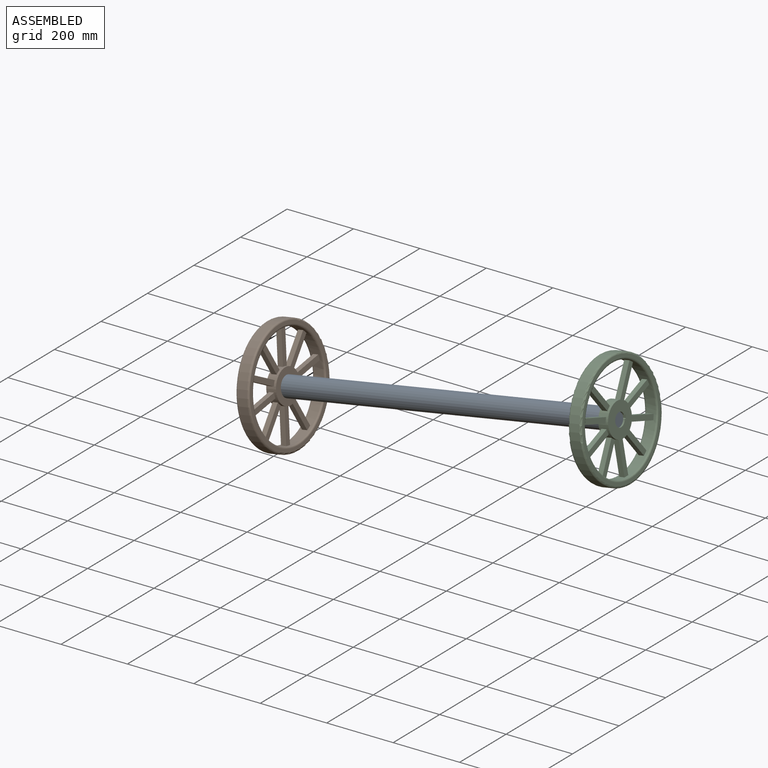
[diagram: assembled view]
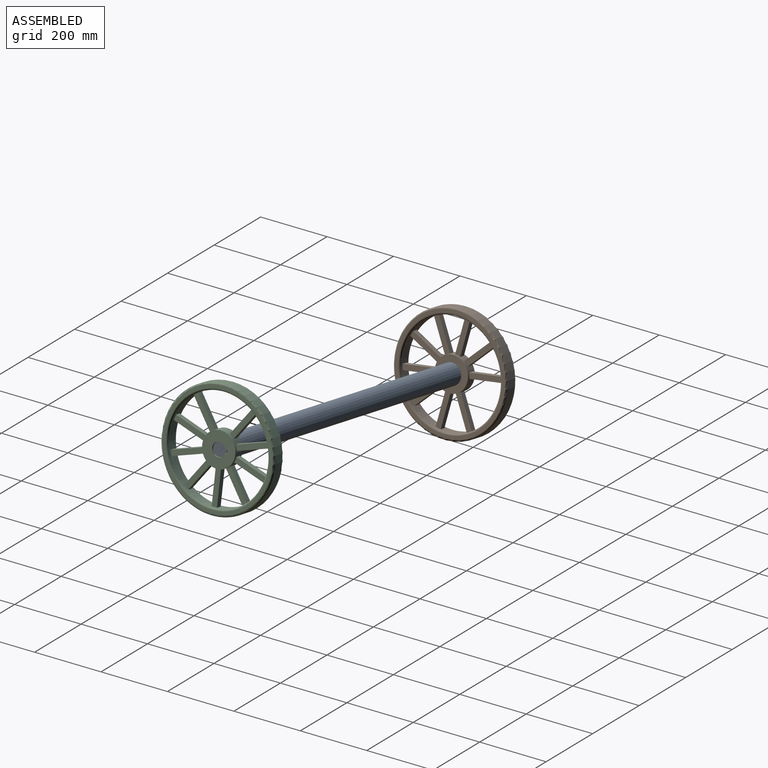
[diagram: assembled view, second angle]
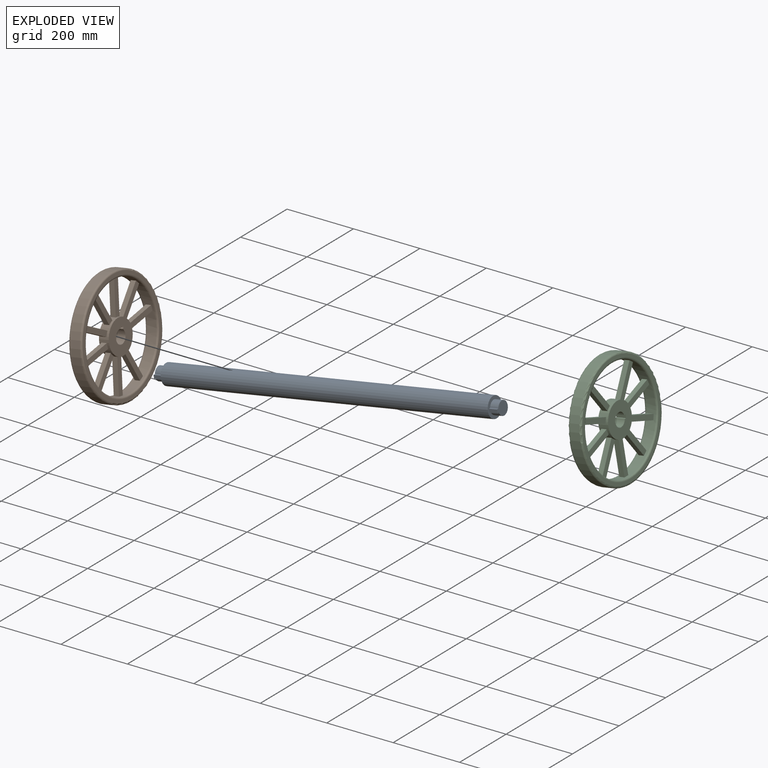
[diagram: exploded view]
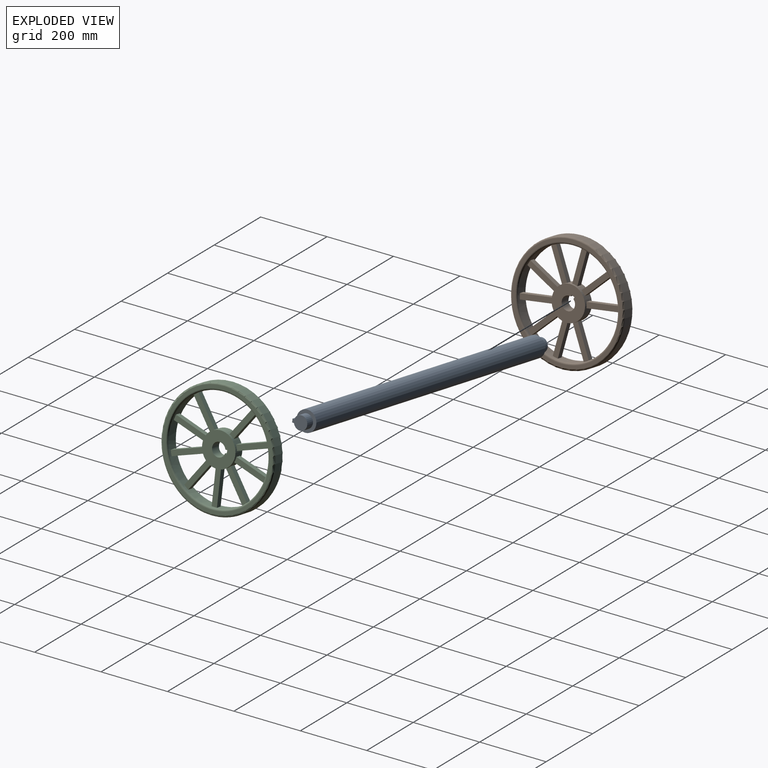
[diagram: exploded view, second angle]
ASSEMBLY  parts=3 mates=4
PART A: 13 faces, bbox 60x60x1050 mm
  f0: plane 60x60mm, normal (0,0,-1), area 1518.7mm2, adj f2,f8,f9,f10,f11
  f1: plane 60x60mm, normal (0,0,1), area 1518.7mm2, adj f2,f3,f4,f5,f6
  f2: cylinder r=30mm len=1000mm, axis (0,0,-1), area 188495.6mm2, adj f0,f1
  f3: plane 25x10mm, normal (0,1,0), area 250mm2, adj f1,f4,f6,f7
  f4: plane 25x5.64mm, normal (-1,0,0), area 140.9mm2, adj f1,f3,f5,f7
  f5: cylinder r=20mm len=40mm, axis (0,0,-1), area 2888.9mm2, adj f1,f4,f6,f7
  f6: plane 25x5.64mm, normal (1,0,0), area 140.9mm2, adj f1,f3,f5,f7
  f7: plane 45x40mm, normal (0,0,1), area 1308.7mm2, adj f3,f4,f5,f6
  f8: plane 25x10mm, normal (0,1,0), area 250mm2, adj f0,f9,f11,f12
  f9: plane 25x5.64mm, normal (-1,0,0), area 140.9mm2, adj f0,f8,f10,f12
  f10: cylinder r=20mm len=40mm, axis (0,0,1), area 2888.9mm2, adj f0,f9,f11,f12
  f11: plane 25x5.64mm, normal (1,0,0), area 140.9mm2, adj f0,f8,f10,f12
  f12: plane 45x40mm, normal (0,0,-1), area 1308.7mm2, adj f8,f9,f10,f11
PART B: 51 faces, bbox 368x368x40 mm
  f0: plane 90.65x71.98mm, normal (0,0,1), area 1602.3mm2, adj f18,f19,f39,f43
  f1: plane 90.65x71.98mm, normal (0,0,-1), area 1602.3mm2, adj f18,f19,f39,f43
  f2: plane 100.46x46.25mm, normal (0,0,1), area 1602.3mm2, adj f20,f21,f39,f43
  f3: plane 100.46x46.25mm, normal (0,0,-1), area 1602.3mm2, adj f20,f21,f39,f43
  f4: plane 100.46x46.25mm, normal (0,0,1), area 1602.3mm2, adj f22,f23,f39,f43
  f5: plane 100.46x46.25mm, normal (0,0,-1), area 1602.3mm2, adj f22,f23,f39,f43
  f6: plane 90.65x71.98mm, normal (0,0,1), area 1602.3mm2, adj f24,f25,f39,f43
  f7: plane 90.65x71.98mm, normal (0,0,-1), area 1602.3mm2, adj f24,f25,f39,f43
  f8: plane 100.64x16mm, normal (0,0,1), area 1602.3mm2, adj f26,f27,f39,f43
  f9: plane 100.64x16mm, normal (0,0,-1), area 1602.3mm2, adj f26,f27,f39,f43
  f10: plane 90.65x71.98mm, normal (0,0,1), area 1602.3mm2, adj f28,f29,f39,f43
  f11: plane 90.65x71.98mm, normal (0,0,-1), area 1602.3mm2, adj f28,f29,f39,f43
  f12: plane 100.46x46.25mm, normal (0,0,1), area 1602.3mm2, adj f30,f31,f39,f43
  f13: plane 100.46x46.25mm, normal (0,0,-1), area 1602.3mm2, adj f30,f31,f39,f43
  f14: plane 100.46x46.25mm, normal (0,0,1), area 1602.3mm2, adj f32,f33,f39,f43
  f15: plane 100.46x46.25mm, normal (0,0,-1), area 1602.3mm2, adj f32,f33,f39,f43
  f16: plane 90.65x71.98mm, normal (0,0,1), area 1602.3mm2, adj f34,f35,f39,f43
  f17: plane 90.65x71.98mm, normal (0,0,-1), area 1602.3mm2, adj f34,f35,f39,f43
  f18: plane 81.25x59.03mm, normal (-0.59,0.81,0), area 1606.9mm2, adj f0,f1,f39,f43
  f19: plane 81.25x59.03mm, normal (0.59,-0.81,0), area 1606.9mm2, adj f0,f1,f39,f43
  f20: plane 95.52x31.03mm, normal (-0.95,0.31,0), area 1606.9mm2, adj f2,f3,f39,f43
  f21: plane 95.52x31.03mm, normal (0.95,-0.31,0), area 1606.9mm2, adj f2,f3,f39,f43
  f22: plane 95.52x31.03mm, normal (-0.95,-0.31,0), area 1606.9mm2, adj f4,f5,f39,f43
  f23: plane 95.52x31.03mm, normal (0.95,0.31,0), area 1606.9mm2, adj f4,f5,f39,f43
  f24: plane 81.25x59.03mm, normal (-0.59,-0.81,0), area 1606.9mm2, adj f6,f7,f39,f43
  f25: plane 81.25x59.03mm, normal (0.59,0.81,0), area 1606.9mm2, adj f6,f7,f39,f43
  f26: plane 100.43x16mm, normal (0,-1,0), area 1606.9mm2, adj f8,f9,f39,f43
  f27: plane 100.43x16mm, normal (0,1,0), area 1606.9mm2, adj f8,f9,f39,f43
  f28: plane 81.25x59.03mm, normal (0.59,-0.81,0), area 1606.9mm2, adj f10,f11,f39,f43
  f29: plane 81.25x59.03mm, normal (-0.59,0.81,0), area 1606.9mm2, adj f10,f11,f39,f43
  f30: plane 95.52x31.03mm, normal (0.95,-0.31,0), area 1606.9mm2, adj f12,f13,f39,f43
  f31: plane 95.52x31.03mm, normal (-0.95,0.31,0), area 1606.9mm2, adj f12,f13,f39,f43
  f32: plane 95.52x31.03mm, normal (0.95,0.31,0), area 1606.9mm2, adj f14,f15,f39,f43
  f33: plane 95.52x31.03mm, normal (-0.95,-0.31,0), area 1606.9mm2, adj f14,f15,f39,f43
  f34: plane 81.25x59.03mm, normal (0.59,0.81,0), area 1606.9mm2, adj f16,f17,f39,f43
  f35: plane 81.25x59.03mm, normal (-0.59,-0.81,0), area 1606.9mm2, adj f16,f17,f39,f43
  f36: plane 30x5.64mm, normal (1,0,0), area 169.1mm2, adj f37,f40,f41,f42
  f37: plane 30x10mm, normal (0,-1,0), area 300mm2, adj f36,f38,f41,f42
  f38: plane 30x5.64mm, normal (-1,0,0), area 169.1mm2, adj f37,f40,f41,f42
  f39: cylinder r=50mm len=100mm, axis (0,0,-1), area 7110.8mm2, adj f0,f1,f2,f3,f4,f5,f6,f7
  f40: cylinder r=20mm len=40mm, axis (0,0,-1), area 3466.7mm2, adj f36,f38,f41,f42
  f41: plane 100x100mm, normal (0,0,1), area 6545.2mm2, adj f36,f37,f38,f39,f40
  f42: plane 100x100mm, normal (0,0,-1), area 6545.2mm2, adj f36,f37,f38,f39,f40
  f43: cylinder r=150mm len=300mm, axis (0,0,-1), area 25969.2mm2, adj f0,f1,f2,f3,f4,f5,f6,f7
  f44: cylinder r=170mm len=340mm, axis (0,0,-1), area 32044.2mm2, adj f47,f48
  f45: plane 330.02x330.02mm, normal (0,0,1), area 10059.4mm2, adj f47,f49
  f46: plane 330.02x330.02mm, normal (0,0,-1), area 10059.4mm2, adj f48,f50
  f47: torus R=165mm, axis (0,0,1), area 8299.5mm2, adj f44,f45
  f48: torus R=165mm, axis (0,0,1), area 8299.5mm2, adj f44,f46
  f49: bspline ~310x310mm, area 7736.3mm2, adj f43,f45
  f50: bspline ~310x310mm, area 7736.3mm2, adj f43,f46
PART C: same geometry as B
PLACE A rot(axis=(-0.64,0,-0.77),180deg) t=(-862.43,-23.9,136.45)mm
PLACE B rot(axis=(0.44,0.73,0.52),97.9deg) t=(-1354.84,-23.9,49.63)mm
PLACE C rot(axis=(0,-1,0),100deg) t=(-355.26,-23.9,225.88)mm
MATE planar B.f39 <-> A.f0  axis (-0.98,0,-0.17) through (-1354.84,-23.9,49.63)mm
MATE cylindrical C.f40 <-> A.f2  axis (0.98,0,0.17) through (-370.03,-23.9,223.28)mm
MATE planar A.f1 <-> C.f41  axis (0.98,0,0.17) through (-370.03,-23.13,223.28)mm
MATE cylindrical B.f40 <-> A.f2  axis (-0.98,0,-0.17) through (-1369.61,-23.9,47.03)mm
